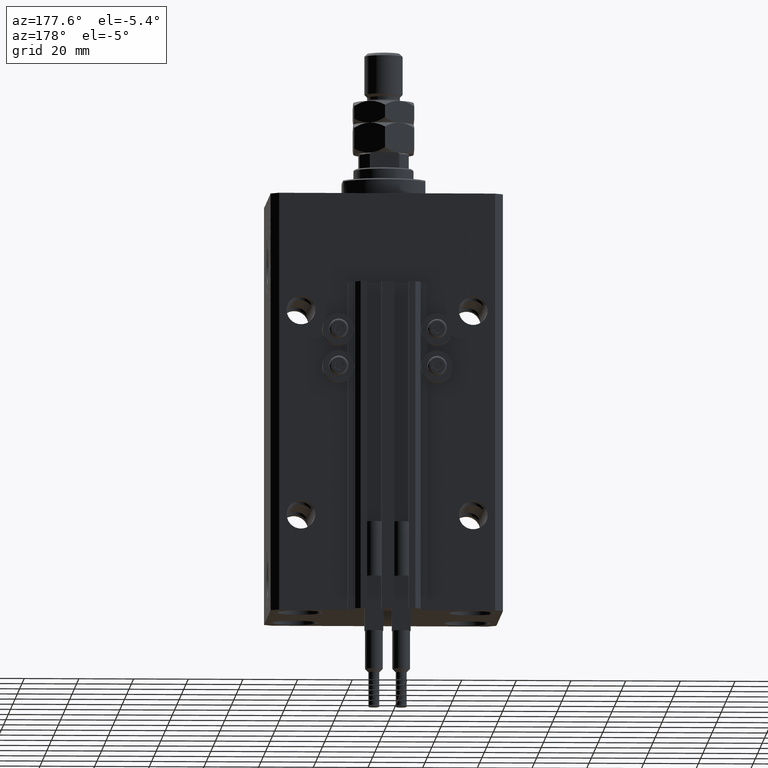
[diagram: clean part render]
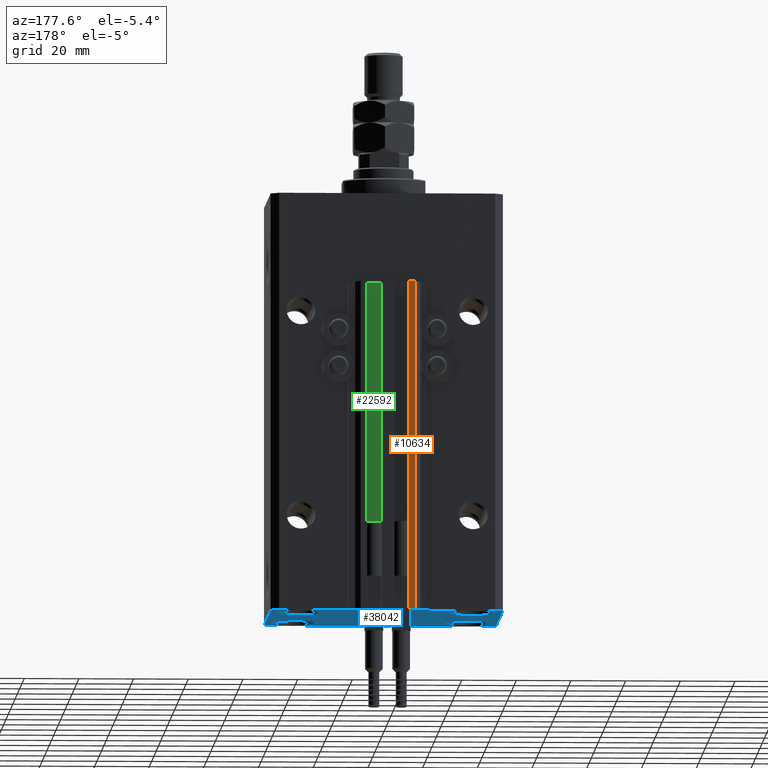
[diagram: same view with three faces highlighted in distinct colors, each labeled with its STEP entity id]
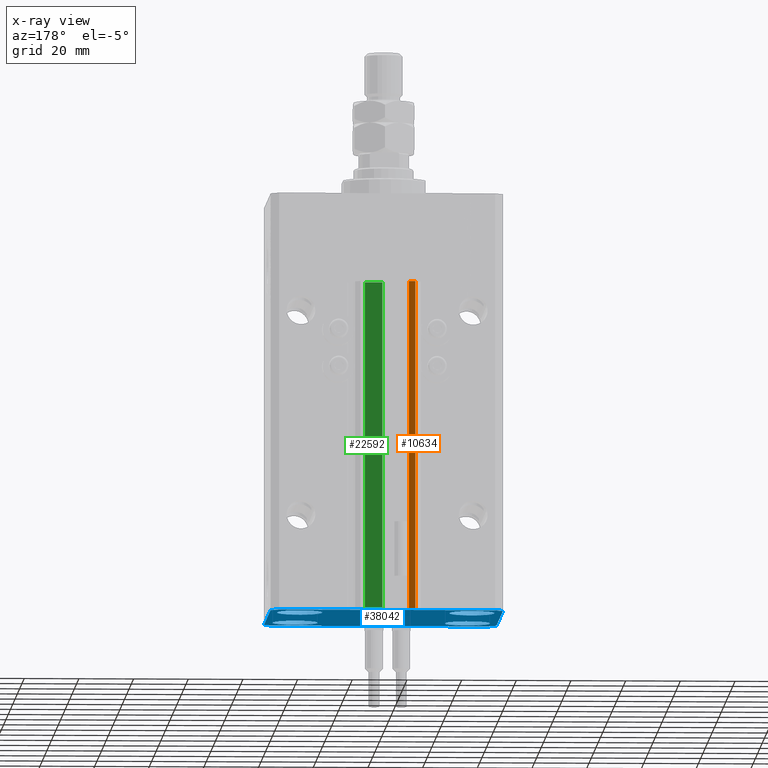
[diagram: x-ray of the same camera — body ghosted, the three highlighted faces saturated]
A machine part, auxiliary view with three faces highlighted in distinct colors.
The next image is the same camera in x-ray (body ghosted, the three faces saturated) — at least one of them is partly hidden behind the body in this view.
Their STEP definitions:

[orange] entity #10634 — the highlighted planar face has unit normal (0, 1, 0).
#12 = EDGE_CURVE ( 'NONE', #25398, #26634, #16975, .T. ) ;
#1314 = VECTOR ( 'NONE', #40157, 1000.000000000000000 ) ;
#1927 = LINE ( 'NONE', #17945, #33636 ) ;
#2988 = VECTOR ( 'NONE', #32899, 1000.000000000000000 ) ;
#5134 = CARTESIAN_POINT ( 'NONE',  ( -7.650000000000002132, 39.49999999999999289, -33.00000000000000000 ) ) ;
#9465 = DIRECTION ( 'NONE',  ( -1.000000000000000000, 0.000000000000000000, 0.000000000000000000 ) ) ;
#10634 = ADVANCED_FACE ( 'NONE', ( #45597 ), #18247, .T. ) ;
#16963 = VERTEX_POINT ( 'NONE', #48613 ) ;
#16975 = LINE ( 'NONE', #17477, #25067 ) ;
#17177 = CARTESIAN_POINT ( 'NONE',  ( -7.650000000000002132, 39.49999999999999289, -153.0000000000000000 ) ) ;
#17477 = CARTESIAN_POINT ( 'NONE',  ( -7.650000000000002132, 39.49999999999999289, -153.0000000000000000 ) ) ;
#17773 = VERTEX_POINT ( 'NONE', #5134 ) ;
#17945 = CARTESIAN_POINT ( 'NONE',  ( -7.650000000000002132, 39.49999999999999289, -33.00000000000000000 ) ) ;
#18247 = PLANE ( 'NONE',  #23072 ) ;
#19992 = CARTESIAN_POINT ( 'NONE',  ( -7.650000000000002132, 39.49999999999999289, -153.0000000000000000 ) ) ;
#21871 = ORIENTED_EDGE ( 'NONE', *, *, #27168, .T. ) ;
#23072 = AXIS2_PLACEMENT_3D ( 'NONE', #25985, #49473, #29613 ) ;
#23828 = CARTESIAN_POINT ( 'NONE',  ( -10.00000000000000000, 39.49999999999999289, -153.0000000000000000 ) ) ;
#25067 = VECTOR ( 'NONE', #9465, 1000.000000000000000 ) ;
#25398 = VERTEX_POINT ( 'NONE', #19992 ) ;
#25985 = CARTESIAN_POINT ( 'NONE',  ( -7.650000000000002132, 39.49999999999999289, -153.0000000000000000 ) ) ;
#26634 = VERTEX_POINT ( 'NONE', #23828 ) ;
#26985 = ORIENTED_EDGE ( 'NONE', *, *, #12, .T. ) ;
#27085 = EDGE_CURVE ( 'NONE', #25398, #17773, #44273, .T. ) ;
#27168 = EDGE_CURVE ( 'NONE', #26634, #16963, #28266, .T. ) ;
#28266 = LINE ( 'NONE', #44018, #1314 ) ;
#29613 = DIRECTION ( 'NONE',  ( 0.000000000000000000, 0.000000000000000000, 1.000000000000000000 ) ) ;
#30522 = EDGE_CURVE ( 'NONE', #17773, #16963, #1927, .T. ) ;
#32899 = DIRECTION ( 'NONE',  ( 0.000000000000000000, 0.000000000000000000, 1.000000000000000000 ) ) ;
#33636 = VECTOR ( 'NONE', #49414, 1000.000000000000000 ) ;
#34052 = ORIENTED_EDGE ( 'NONE', *, *, #27085, .F. ) ;
#39811 = ORIENTED_EDGE ( 'NONE', *, *, #30522, .F. ) ;
#40051 = EDGE_LOOP ( 'NONE', ( #39811, #34052, #26985, #21871 ) ) ;
#40157 = DIRECTION ( 'NONE',  ( 0.000000000000000000, 0.000000000000000000, 1.000000000000000000 ) ) ;
#44018 = CARTESIAN_POINT ( 'NONE',  ( -10.00000000000000000, 39.49999999999999289, -153.0000000000000000 ) ) ;
#44273 = LINE ( 'NONE', #17177, #2988 ) ;
#45597 = FACE_OUTER_BOUND ( 'NONE', #40051, .T. ) ;
#48613 = CARTESIAN_POINT ( 'NONE',  ( -10.00000000000000000, 39.49999999999999289, -33.00000000000000000 ) ) ;
#49414 = DIRECTION ( 'NONE',  ( -1.000000000000000000, 0.000000000000000000, 0.000000000000000000 ) ) ;
#49473 = DIRECTION ( 'NONE',  ( 0.000000000000000000, 1.000000000000000000, -0.000000000000000000 ) ) ;

[blue] entity #38042 — the highlighted planar face has unit normal (0, 0, 1).
#576 = VERTEX_POINT ( 'NONE', #4889 ) ;
#979 = VERTEX_POINT ( 'NONE', #10259 ) ;
#1190 = CARTESIAN_POINT ( 'NONE',  ( 23.25000000000000355, -20.00000000000000000, -153.0000000000000000 ) ) ;
#1397 = CARTESIAN_POINT ( 'NONE',  ( -39.50000000000000711, 31.50000000000000000, -153.0000000000000000 ) ) ;
#1414 = DIRECTION ( 'NONE',  ( -0.000000000000000000, -0.000000000000000000, 1.000000000000000000 ) ) ;
#1921 = PLANE ( 'NONE',  #27995 ) ;
#1928 = CARTESIAN_POINT ( 'NONE',  ( 39.50000000000056843, 31.50000000000000000, -153.0000000000000000 ) ) ;
#2168 = VERTEX_POINT ( 'NONE', #8158 ) ;
#2232 = EDGE_LOOP ( 'NONE', ( #9760, #6535 ) ) ;
#2661 = EDGE_CURVE ( 'NONE', #41760, #7910, #36422, .T. ) ;
#2738 = EDGE_CURVE ( 'NONE', #2168, #14358, #18100, .T. ) ;
#3142 = VERTEX_POINT ( 'NONE', #46667 ) ;
#3147 = CARTESIAN_POINT ( 'NONE',  ( 31.50000000000000000, 20.00000000000001066, -153.0000000000000000 ) ) ;
#3685 = DIRECTION ( 'NONE',  ( 0.7071067811865483499, 0.7071067811865466846, 0.000000000000000000 ) ) ;
#3689 = EDGE_CURVE ( 'NONE', #19622, #40067, #33470, .T. ) ;
#4777 = CARTESIAN_POINT ( 'NONE',  ( -31.50000000000000000, 20.00000000000000000, -153.0000000000000000 ) ) ;
#4889 = CARTESIAN_POINT ( 'NONE',  ( -39.50000000000000711, 31.50000000000000000, -153.0000000000000000 ) ) ;
#5543 = EDGE_CURVE ( 'NONE', #38009, #47768, #7854, .T. ) ;
#6045 = DIRECTION ( 'NONE',  ( 0.000000000000000000, 0.000000000000000000, 1.000000000000000000 ) ) ;
#6211 = EDGE_LOOP ( 'NONE', ( #21494, #41204, #18299, #14212, #12869, #23074, #11163, #14499 ) ) ;
#6516 = CARTESIAN_POINT ( 'NONE',  ( 39.74999999999999289, 20.00000000000001066, -153.0000000000000000 ) ) ;
#6535 = ORIENTED_EDGE ( 'NONE', *, *, #5543, .T. ) ;
#7223 = CIRCLE ( 'NONE', #41828, 8.250000000000000000 ) ;
#7854 = CIRCLE ( 'NONE', #36697, 8.249999999999992895 ) ;
#7910 = VERTEX_POINT ( 'NONE', #39578 ) ;
#8012 = LINE ( 'NONE', #35628, #42904 ) ;
#8158 = CARTESIAN_POINT ( 'NONE',  ( 42.50000000000051870, 28.49999999999995381, -153.0000000000000000 ) ) ;
#8295 = CARTESIAN_POINT ( 'NONE',  ( -39.50000000000000711, -31.50000000000000000, -153.0000000000000000 ) ) ;
#8886 = EDGE_CURVE ( 'NONE', #45564, #41760, #23680, .T. ) ;
#9760 = ORIENTED_EDGE ( 'NONE', *, *, #39241, .T. ) ;
#9868 = AXIS2_PLACEMENT_3D ( 'NONE', #26047, #18305, #15887 ) ;
#9890 = ORIENTED_EDGE ( 'NONE', *, *, #26968, .T. ) ;
#10259 = CARTESIAN_POINT ( 'NONE',  ( -39.75000000000000000, 20.00000000000000000, -153.0000000000000000 ) ) ;
#10499 = CARTESIAN_POINT ( 'NONE',  ( 31.50000000000000000, 20.00000000000001066, -153.0000000000000000 ) ) ;
#10633 = CARTESIAN_POINT ( 'NONE',  ( 31.50000000000000000, -20.00000000000000000, -153.0000000000000000 ) ) ;
#10801 = EDGE_LOOP ( 'NONE', ( #11151, #23788 ) ) ;
#11151 = ORIENTED_EDGE ( 'NONE', *, *, #30316, .T. ) ;
#11163 = ORIENTED_EDGE ( 'NONE', *, *, #8886, .F. ) ;
#12118 = EDGE_CURVE ( 'NONE', #47738, #2168, #8012, .T. ) ;
#12869 = ORIENTED_EDGE ( 'NONE', *, *, #40875, .F. ) ;
#12909 = VECTOR ( 'NONE', #31674, 1000.000000000000000 ) ;
#13065 = CARTESIAN_POINT ( 'NONE',  ( 39.50000000000056843, 31.50000000000000000, -153.0000000000000000 ) ) ;
#13724 = CARTESIAN_POINT ( 'NONE',  ( 39.50000000000000711, -31.50000000000000000, -153.0000000000000000 ) ) ;
#14212 = ORIENTED_EDGE ( 'NONE', *, *, #41986, .F. ) ;
#14358 = VERTEX_POINT ( 'NONE', #13065 ) ;
#14499 = ORIENTED_EDGE ( 'NONE', *, *, #34039, .F. ) ;
#15887 = DIRECTION ( 'NONE',  ( 1.000000000000000000, 0.000000000000000000, 0.000000000000000000 ) ) ;
#16347 = EDGE_LOOP ( 'NONE', ( #9890, #19521 ) ) ;
#16644 = LINE ( 'NONE', #1397, #26188 ) ;
#17676 = FACE_BOUND ( 'NONE', #16347, .T. ) ;
#17939 = DIRECTION ( 'NONE',  ( 1.000000000000000000, 0.000000000000000000, -0.000000000000000000 ) ) ;
#18100 = LINE ( 'NONE', #40557, #24376 ) ;
#18148 = CARTESIAN_POINT ( 'NONE',  ( -42.50000000000000000, 28.50000000000000000, -153.0000000000000000 ) ) ;
#18299 = ORIENTED_EDGE ( 'NONE', *, *, #12118, .F. ) ;
#18305 = DIRECTION ( 'NONE',  ( -0.000000000000000000, -0.000000000000000000, 1.000000000000000000 ) ) ;
#18509 = EDGE_CURVE ( 'NONE', #14358, #576, #37030, .T. ) ;
#18891 = DIRECTION ( 'NONE',  ( -0.000000000000000000, -0.000000000000000000, 1.000000000000000000 ) ) ;
#19521 = ORIENTED_EDGE ( 'NONE', *, *, #3689, .T. ) ;
#19622 = VERTEX_POINT ( 'NONE', #6516 ) ;
#19781 = CIRCLE ( 'NONE', #47822, 8.249999999999992895 ) ;
#19849 = CARTESIAN_POINT ( 'NONE',  ( 31.50000000000000000, -20.00000000000000000, -153.0000000000000000 ) ) ;
#20061 = CARTESIAN_POINT ( 'NONE',  ( -42.50000000000000000, 28.50000000000000000, -153.0000000000000000 ) ) ;
#20227 = ORIENTED_EDGE ( 'NONE', *, *, #37739, .T. ) ;
#20737 = VECTOR ( 'NONE', #3685, 1000.000000000000000 ) ;
#21294 = CARTESIAN_POINT ( 'NONE',  ( 23.25000000000000355, 20.00000000000001066, -153.0000000000000000 ) ) ;
#21428 = VERTEX_POINT ( 'NONE', #34960 ) ;
#21494 = ORIENTED_EDGE ( 'NONE', *, *, #18509, .F. ) ;
#22053 = FACE_BOUND ( 'NONE', #2232, .T. ) ;
#23074 = ORIENTED_EDGE ( 'NONE', *, *, #2661, .F. ) ;
#23680 = LINE ( 'NONE', #20061, #12909 ) ;
#23788 = ORIENTED_EDGE ( 'NONE', *, *, #32514, .T. ) ;
#23800 = DIRECTION ( 'NONE',  ( 0.7071067811865471286, -0.7071067811865479058, 0.000000000000000000 ) ) ;
#24045 = CARTESIAN_POINT ( 'NONE',  ( -42.50000000000000000, -28.50000000000000000, -153.0000000000000000 ) ) ;
#24376 = VECTOR ( 'NONE', #36679, 1000.000000000000114 ) ;
#26047 = CARTESIAN_POINT ( 'NONE',  ( -31.50000000000000000, -20.00000000000000000, -153.0000000000000000 ) ) ;
#26188 = VECTOR ( 'NONE', #32634, 1000.000000000000000 ) ;
#26376 = DIRECTION ( 'NONE',  ( 1.000000000000000000, 0.000000000000000000, 0.000000000000000000 ) ) ;
#26494 = DIRECTION ( 'NONE',  ( -0.000000000000000000, -0.000000000000000000, 1.000000000000000000 ) ) ;
#26968 = EDGE_CURVE ( 'NONE', #40067, #19622, #30987, .T. ) ;
#27886 = DIRECTION ( 'NONE',  ( 8.886653596232072440E-15, 1.000000000000000000, 0.000000000000000000 ) ) ;
#27918 = LINE ( 'NONE', #8295, #41306 ) ;
#27995 = AXIS2_PLACEMENT_3D ( 'NONE', #49160, #6045, #17939 ) ;
#28143 = EDGE_CURVE ( 'NONE', #3142, #21428, #45061, .T. ) ;
#30124 = VECTOR ( 'NONE', #23800, 1000.000000000000000 ) ;
#30257 = DIRECTION ( 'NONE',  ( -0.000000000000000000, -0.000000000000000000, 1.000000000000000000 ) ) ;
#30316 = EDGE_CURVE ( 'NONE', #979, #48098, #7223, .T. ) ;
#30916 = DIRECTION ( 'NONE',  ( -0.000000000000000000, -0.000000000000000000, 1.000000000000000000 ) ) ;
#30987 = CIRCLE ( 'NONE', #45022, 8.249999999999992895 ) ;
#31051 = LINE ( 'NONE', #50914, #20737 ) ;
#31674 = DIRECTION ( 'NONE',  ( 0.000000000000000000, -1.000000000000000000, 0.000000000000000000 ) ) ;
#31723 = DIRECTION ( 'NONE',  ( -0.000000000000000000, -0.000000000000000000, 1.000000000000000000 ) ) ;
#31872 = EDGE_LOOP ( 'NONE', ( #35910, #20227 ) ) ;
#32298 = DIRECTION ( 'NONE',  ( 1.000000000000000000, 0.000000000000000000, 0.000000000000000000 ) ) ;
#32399 = DIRECTION ( 'NONE',  ( -0.000000000000000000, -0.000000000000000000, 1.000000000000000000 ) ) ;
#32514 = EDGE_CURVE ( 'NONE', #48098, #979, #32747, .T. ) ;
#32634 = DIRECTION ( 'NONE',  ( -0.7071067811865471286, -0.7071067811865479058, 0.000000000000000000 ) ) ;
#32747 = CIRCLE ( 'NONE', #50068, 8.250000000000000000 ) ;
#33150 = DIRECTION ( 'NONE',  ( 1.000000000000000000, 0.000000000000000000, 0.000000000000000000 ) ) ;
#33187 = CARTESIAN_POINT ( 'NONE',  ( 42.50000000000000711, -28.50000000000000355, -153.0000000000000000 ) ) ;
#33409 = CARTESIAN_POINT ( 'NONE',  ( 39.74999999999999289, -20.00000000000000000, -153.0000000000000000 ) ) ;
#33470 = CIRCLE ( 'NONE', #46673, 8.249999999999992895 ) ;
#34039 = EDGE_CURVE ( 'NONE', #576, #45564, #16644, .T. ) ;
#34280 = CARTESIAN_POINT ( 'NONE',  ( -31.50000000000000000, 20.00000000000000000, -153.0000000000000000 ) ) ;
#34342 = AXIS2_PLACEMENT_3D ( 'NONE', #44529, #32399, #47649 ) ;
#34624 = DIRECTION ( 'NONE',  ( 1.000000000000000000, 0.000000000000000000, 0.000000000000000000 ) ) ;
#34722 = CARTESIAN_POINT ( 'NONE',  ( -42.50000000000000000, -28.50000000000000000, -153.0000000000000000 ) ) ;
#34960 = CARTESIAN_POINT ( 'NONE',  ( -23.25000000000000000, -20.00000000000000000, -153.0000000000000000 ) ) ;
#35092 = DIRECTION ( 'NONE',  ( 1.000000000000000000, 0.000000000000000000, 0.000000000000000000 ) ) ;
#35628 = CARTESIAN_POINT ( 'NONE',  ( 42.50000000000000711, -28.50000000000000355, -153.0000000000000000 ) ) ;
#35910 = ORIENTED_EDGE ( 'NONE', *, *, #28143, .T. ) ;
#36422 = LINE ( 'NONE', #24045, #30124 ) ;
#36679 = DIRECTION ( 'NONE',  ( -0.7071067811865356934, 0.7071067811865594521, 0.000000000000000000 ) ) ;
#36697 = AXIS2_PLACEMENT_3D ( 'NONE', #19849, #31723, #35092 ) ;
#37030 = LINE ( 'NONE', #1928, #42348 ) ;
#37284 = FACE_OUTER_BOUND ( 'NONE', #6211, .T. ) ;
#37739 = EDGE_CURVE ( 'NONE', #21428, #3142, #37890, .T. ) ;
#37890 = CIRCLE ( 'NONE', #9868, 8.250000000000000000 ) ;
#38009 = VERTEX_POINT ( 'NONE', #33409 ) ;
#38042 = ADVANCED_FACE ( 'NONE', ( #41153, #22053, #17676, #49406, #37284 ), #1921, .F. ) ;
#38122 = DIRECTION ( 'NONE',  ( 1.000000000000000000, 0.000000000000000000, 0.000000000000000000 ) ) ;
#39241 = EDGE_CURVE ( 'NONE', #47768, #38009, #19781, .T. ) ;
#39578 = CARTESIAN_POINT ( 'NONE',  ( -39.50000000000000711, -31.50000000000000000, -153.0000000000000000 ) ) ;
#40067 = VERTEX_POINT ( 'NONE', #21294 ) ;
#40557 = CARTESIAN_POINT ( 'NONE',  ( 42.50000000000051870, 28.49999999999995381, -153.0000000000000000 ) ) ;
#40875 = EDGE_CURVE ( 'NONE', #7910, #40999, #27918, .T. ) ;
#40908 = DIRECTION ( 'NONE',  ( -1.000000000000000000, 0.000000000000000000, 0.000000000000000000 ) ) ;
#40999 = VERTEX_POINT ( 'NONE', #13724 ) ;
#41153 = FACE_BOUND ( 'NONE', #31872, .T. ) ;
#41204 = ORIENTED_EDGE ( 'NONE', *, *, #2738, .F. ) ;
#41306 = VECTOR ( 'NONE', #32298, 1000.000000000000000 ) ;
#41760 = VERTEX_POINT ( 'NONE', #34722 ) ;
#41783 = DIRECTION ( 'NONE',  ( 1.000000000000000000, 0.000000000000000000, 0.000000000000000000 ) ) ;
#41828 = AXIS2_PLACEMENT_3D ( 'NONE', #4777, #1414, #33150 ) ;
#41986 = EDGE_CURVE ( 'NONE', #40999, #47738, #31051, .T. ) ;
#42348 = VECTOR ( 'NONE', #40908, 1000.000000000000000 ) ;
#42904 = VECTOR ( 'NONE', #27886, 1000.000000000000000 ) ;
#44529 = CARTESIAN_POINT ( 'NONE',  ( -31.50000000000000000, -20.00000000000000000, -153.0000000000000000 ) ) ;
#45022 = AXIS2_PLACEMENT_3D ( 'NONE', #10499, #26494, #38122 ) ;
#45061 = CIRCLE ( 'NONE', #34342, 8.250000000000000000 ) ;
#45564 = VERTEX_POINT ( 'NONE', #18148 ) ;
#46032 = CARTESIAN_POINT ( 'NONE',  ( -23.25000000000000000, 20.00000000000000000, -153.0000000000000000 ) ) ;
#46667 = CARTESIAN_POINT ( 'NONE',  ( -39.75000000000000000, -20.00000000000000000, -153.0000000000000000 ) ) ;
#46673 = AXIS2_PLACEMENT_3D ( 'NONE', #3147, #18891, #34624 ) ;
#47649 = DIRECTION ( 'NONE',  ( 1.000000000000000000, 0.000000000000000000, 0.000000000000000000 ) ) ;
#47738 = VERTEX_POINT ( 'NONE', #33187 ) ;
#47768 = VERTEX_POINT ( 'NONE', #1190 ) ;
#47822 = AXIS2_PLACEMENT_3D ( 'NONE', #10633, #30257, #26376 ) ;
#48098 = VERTEX_POINT ( 'NONE', #46032 ) ;
#49160 = CARTESIAN_POINT ( 'NONE',  ( 0.000000000000000000, 0.000000000000000000, -153.0000000000000000 ) ) ;
#49406 = FACE_BOUND ( 'NONE', #10801, .T. ) ;
#50068 = AXIS2_PLACEMENT_3D ( 'NONE', #34280, #30916, #41783 ) ;
#50914 = CARTESIAN_POINT ( 'NONE',  ( 39.50000000000000711, -31.50000000000000000, -153.0000000000000000 ) ) ;

[green] entity #22592 — the highlighted planar face has unit normal (0, 1, 0).
#4323 = CARTESIAN_POINT ( 'NONE',  ( 8.199999999999999289, 33.50000000000000000, -153.0000000000000000 ) ) ;
#5966 = ORIENTED_EDGE ( 'NONE', *, *, #40739, .F. ) ;
#7595 = EDGE_CURVE ( 'NONE', #22040, #14647, #15710, .T. ) ;
#7885 = LINE ( 'NONE', #39386, #46174 ) ;
#10207 = PLANE ( 'NONE',  #39067 ) ;
#11666 = CARTESIAN_POINT ( 'NONE',  ( 8.199999999999999289, 33.50000000000000000, -153.0000000000000000 ) ) ;
#11823 = DIRECTION ( 'NONE',  ( 0.000000000000000000, 0.000000000000000000, 1.000000000000000000 ) ) ;
#14647 = VERTEX_POINT ( 'NONE', #19159 ) ;
#15710 = LINE ( 'NONE', #40401, #26921 ) ;
#18343 = VERTEX_POINT ( 'NONE', #26490 ) ;
#19159 = CARTESIAN_POINT ( 'NONE',  ( 1.800000000000000933, 33.50000000000000000, -33.00000000000000000 ) ) ;
#22040 = VERTEX_POINT ( 'NONE', #39992 ) ;
#22592 = ADVANCED_FACE ( 'NONE', ( #37837 ), #10207, .T. ) ;
#24613 = ORIENTED_EDGE ( 'NONE', *, *, #29039, .F. ) ;
#26018 = VERTEX_POINT ( 'NONE', #4323 ) ;
#26490 = CARTESIAN_POINT ( 'NONE',  ( 8.199999999999999289, 33.50000000000000000, -33.00000000000000000 ) ) ;
#26921 = VECTOR ( 'NONE', #11823, 1000.000000000000000 ) ;
#28487 = ORIENTED_EDGE ( 'NONE', *, *, #7595, .T. ) ;
#29039 = EDGE_CURVE ( 'NONE', #26018, #18343, #47172, .T. ) ;
#32928 = DIRECTION ( 'NONE',  ( -1.000000000000000000, 0.000000000000000000, 0.000000000000000000 ) ) ;
#35161 = DIRECTION ( 'NONE',  ( 0.000000000000000000, 0.000000000000000000, 1.000000000000000000 ) ) ;
#35506 = VECTOR ( 'NONE', #32928, 1000.000000000000000 ) ;
#35550 = CARTESIAN_POINT ( 'NONE',  ( 8.199999999999999289, 33.50000000000000000, -153.0000000000000000 ) ) ;
#36125 = EDGE_CURVE ( 'NONE', #26018, #22040, #7885, .T. ) ;
#37837 = FACE_OUTER_BOUND ( 'NONE', #41122, .T. ) ;
#39067 = AXIS2_PLACEMENT_3D ( 'NONE', #11666, #49443, #35161 ) ;
#39386 = CARTESIAN_POINT ( 'NONE',  ( 8.199999999999999289, 33.50000000000000000, -153.0000000000000000 ) ) ;
#39635 = DIRECTION ( 'NONE',  ( -1.000000000000000000, 0.000000000000000000, 0.000000000000000000 ) ) ;
#39992 = CARTESIAN_POINT ( 'NONE',  ( 1.800000000000000933, 33.50000000000000000, -153.0000000000000000 ) ) ;
#40401 = CARTESIAN_POINT ( 'NONE',  ( 1.800000000000000933, 33.50000000000000000, -153.0000000000000000 ) ) ;
#40739 = EDGE_CURVE ( 'NONE', #18343, #14647, #44809, .T. ) ;
#41122 = EDGE_LOOP ( 'NONE', ( #5966, #24613, #43003, #28487 ) ) ;
#43003 = ORIENTED_EDGE ( 'NONE', *, *, #36125, .T. ) ;
#43301 = DIRECTION ( 'NONE',  ( 0.000000000000000000, 0.000000000000000000, 1.000000000000000000 ) ) ;
#43791 = CARTESIAN_POINT ( 'NONE',  ( 8.199999999999999289, 33.50000000000000000, -33.00000000000000000 ) ) ;
#44809 = LINE ( 'NONE', #43791, #35506 ) ;
#45097 = VECTOR ( 'NONE', #43301, 1000.000000000000000 ) ;
#46174 = VECTOR ( 'NONE', #39635, 1000.000000000000000 ) ;
#47172 = LINE ( 'NONE', #35550, #45097 ) ;
#49443 = DIRECTION ( 'NONE',  ( 0.000000000000000000, 1.000000000000000000, -0.000000000000000000 ) ) ;